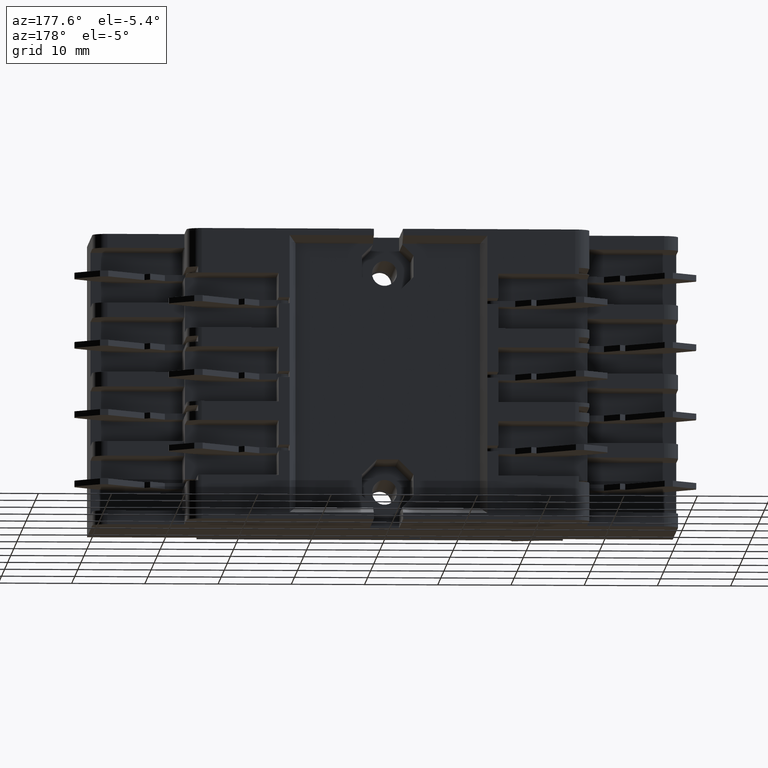
[diagram: clean part render]
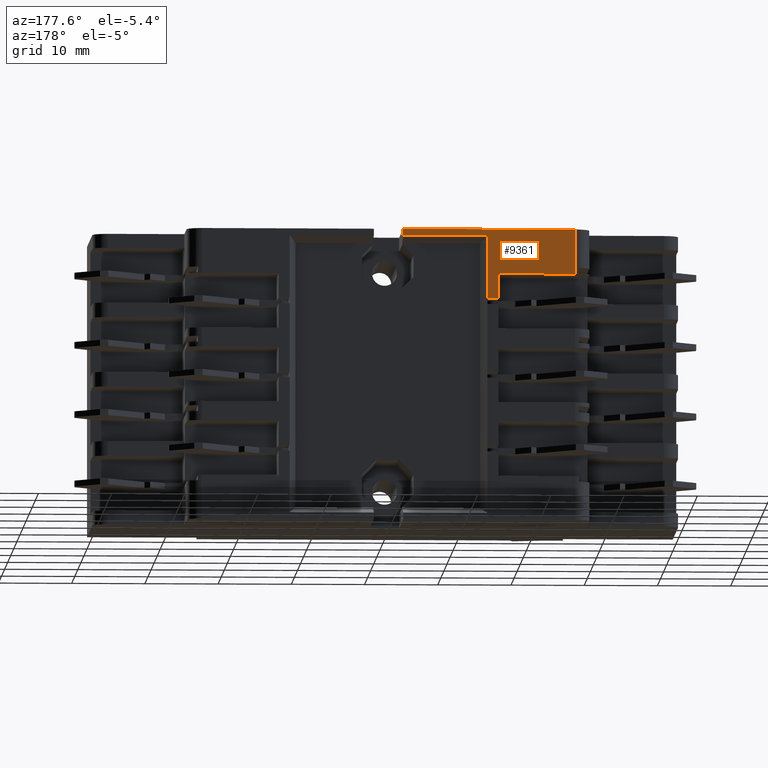
[diagram: same view with one face highlighted and labeled with its STEP entity id]
A machine part, auxiliary view. The second image highlights one B-rep face of the part: STEP entity #9361.
In plain terms, the highlighted planar face has unit normal (0, 1, 0).
Its self-contained STEP definition (entity closure, byte-faithful):
#3157=CARTESIAN_POINT('',(-15.000000000000002,28.0,-9.450000000004387));
#3158=VERTEX_POINT('',#3157);
#3165=CARTESIAN_POINT('',(-13.500000000000000,28.0,-9.450000000005080));
#3166=VERTEX_POINT('',#3165);
#3167=CARTESIAN_POINT('',(-13.500000000000000,28.0,-9.450000000005078));
#3168=DIRECTION('',(-1.0,0.0,4.618528E-013));
#3169=VECTOR('',#3168,1.500000000000004);
#3170=LINE('',#3167,#3169);
#3171=EDGE_CURVE('',#3166,#3158,#3170,.T.);
#5886=CARTESIAN_POINT('',(-25.500000000000000,28.0,-6.099999999999999));
#5887=VERTEX_POINT('',#5886);
#5897=CARTESIAN_POINT('',(-14.999999999999996,28.0,-6.100000000000000));
#5898=VERTEX_POINT('',#5897);
#5899=CARTESIAN_POINT('',(-14.999999999999996,28.0,-6.100000000000000));
#5900=DIRECTION('',(-1.0,0.0,0.0));
#5901=VECTOR('',#5900,10.500000000000004);
#5902=LINE('',#5899,#5901);
#5903=EDGE_CURVE('',#5898,#5887,#5902,.T.);
#7454=CARTESIAN_POINT('',(-13.500000000000004,28.0,-0.899999999999999));
#7455=VERTEX_POINT('',#7454);
#7456=CARTESIAN_POINT('',(-13.500000000000000,28.0,-0.899999999999999));
#7457=DIRECTION('',(0.0,0.0,-1.0));
#7458=VECTOR('',#7457,8.550000000005081);
#7459=LINE('',#7456,#7458);
#7460=EDGE_CURVE('',#7455,#3166,#7459,.T.);
#7650=CARTESIAN_POINT('',(-2.000000000000002,28.0,-0.899999999999999));
#7651=VERTEX_POINT('',#7650);
#7660=CARTESIAN_POINT('',(-2.000000000000002,28.0,-0.899999999999999));
#7661=DIRECTION('',(-1.0,0.0,0.0));
#7662=VECTOR('',#7661,11.500000000000000);
#7663=LINE('',#7660,#7662);
#7664=EDGE_CURVE('',#7651,#7455,#7663,.T.);
#7823=CARTESIAN_POINT('',(-2.000000000000002,28.0,0.0));
#7824=VERTEX_POINT('',#7823);
#7825=CARTESIAN_POINT('',(-2.000000000000002,28.0,0.0));
#7826=DIRECTION('',(0.0,0.0,-1.0));
#7827=VECTOR('',#7826,0.899999999999999);
#7828=LINE('',#7825,#7827);
#7829=EDGE_CURVE('',#7824,#7651,#7828,.T.);
#8458=CARTESIAN_POINT('',(-25.500000000000000,28.0,0.0));
#8459=VERTEX_POINT('',#8458);
#8460=CARTESIAN_POINT('',(-25.500000000000000,28.0,0.0));
#8461=DIRECTION('',(1.0,0.0,0.0));
#8462=VECTOR('',#8461,23.500000000000000);
#8463=LINE('',#8460,#8462);
#8464=EDGE_CURVE('',#8459,#7824,#8463,.T.);
#9273=CARTESIAN_POINT('',(-14.999999999999998,28.0,-9.450000000004387));
#9274=DIRECTION('',(0.0,0.0,1.0));
#9275=VECTOR('',#9274,3.350000000004387);
#9276=LINE('',#9273,#9275);
#9277=EDGE_CURVE('',#3158,#5898,#9276,.T.);
#9341=CARTESIAN_POINT('',(27.500000000000000,28.0,0.0));
#9342=DIRECTION('',(0.0,1.0,0.0));
#9343=DIRECTION('',(0.0,0.0,1.0));
#9344=AXIS2_PLACEMENT_3D('',#9341,#9342,#9343);
#9345=PLANE('',#9344);
#9346=ORIENTED_EDGE('',*,*,#3171,.T.);
#9347=ORIENTED_EDGE('',*,*,#9277,.T.);
#9348=ORIENTED_EDGE('',*,*,#5903,.T.);
#9349=CARTESIAN_POINT('',(-25.500000000000000,28.0,0.0));
#9350=DIRECTION('',(0.0,0.0,-1.0));
#9351=VECTOR('',#9350,6.099999999999999);
#9352=LINE('',#9349,#9351);
#9353=EDGE_CURVE('',#8459,#5887,#9352,.T.);
#9354=ORIENTED_EDGE('',*,*,#9353,.F.);
#9355=ORIENTED_EDGE('',*,*,#8464,.T.);
#9356=ORIENTED_EDGE('',*,*,#7829,.T.);
#9357=ORIENTED_EDGE('',*,*,#7664,.T.);
#9358=ORIENTED_EDGE('',*,*,#7460,.T.);
#9359=EDGE_LOOP('',(#9346,#9347,#9348,#9354,#9355,#9356,#9357,#9358));
#9360=FACE_OUTER_BOUND('',#9359,.T.);
#9361=ADVANCED_FACE('',(#9360),#9345,.T.);